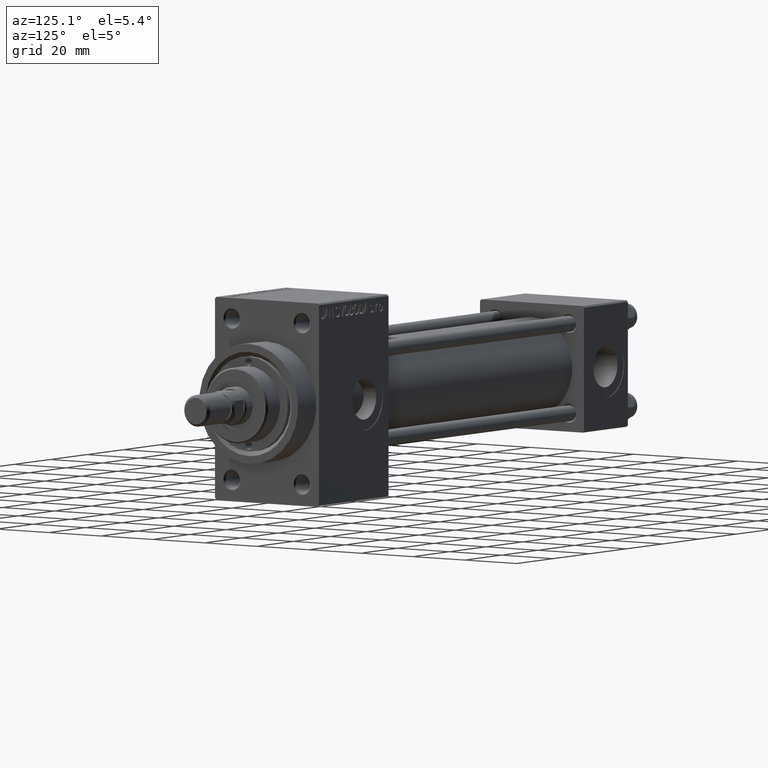
[diagram: clean part render]
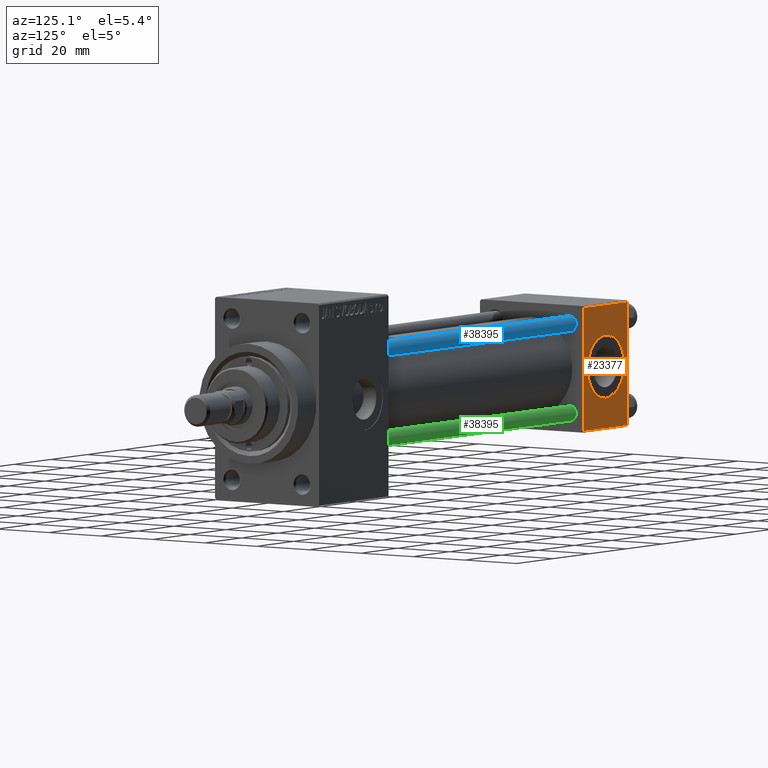
[diagram: same view with three faces highlighted in distinct colors, each labeled with its STEP entity id]
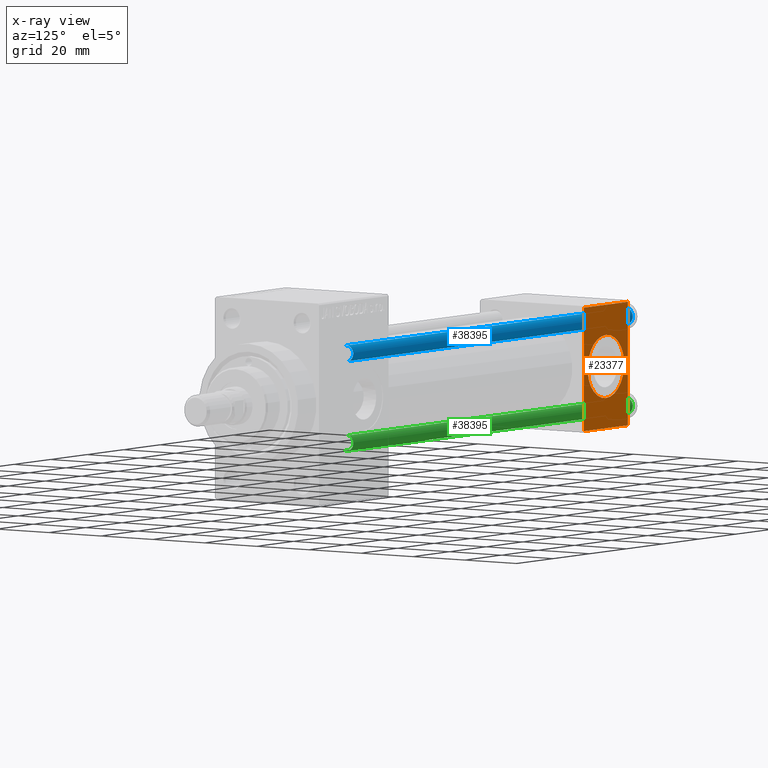
[diagram: x-ray of the same camera — body ghosted, the three highlighted faces saturated]
A machine part, auxiliary view with three faces highlighted in distinct colors.
The next image is the same camera in x-ray (body ghosted, the three faces saturated) — at least one of them is partly hidden behind the body in this view.
Their STEP definitions:

[orange] entity #23377 — the highlighted planar face has unit normal (0, 1, 0).
#1978 = DIRECTION ( 'NONE',  ( -1.000000000000000000, 0.000000000000000000, 0.000000000000000000 ) ) ;
#2145 = DIRECTION ( 'NONE',  ( 1.000000000000000000, 0.000000000000000000, 0.000000000000000000 ) ) ;
#3366 = EDGE_CURVE ( 'NONE', #13104, #10868, #34228, .T. ) ;
#3388 = DIRECTION ( 'NONE',  ( 0.000000000000000000, 0.000000000000000000, -1.000000000000000000 ) ) ;
#3873 = CARTESIAN_POINT ( 'NONE',  ( 24.00000000000000000, 20.00000000000000000, 20.00000000000000000 ) ) ;
#5415 = CARTESIAN_POINT ( 'NONE',  ( 24.00000000000000000, 20.00000000000000000, 19.49999999999999289 ) ) ;
#6964 = DIRECTION ( 'NONE',  ( 0.000000000000000000, -0.000000000000000000, 1.000000000000000000 ) ) ;
#7136 = LINE ( 'NONE', #22387, #17922 ) ;
#7212 = PLANE ( 'NONE',  #27807 ) ;
#9802 = CARTESIAN_POINT ( 'NONE',  ( 24.00000000000000000, 20.00000000000000000, -19.50000000000002132 ) ) ;
#10868 = VERTEX_POINT ( 'NONE', #39727 ) ;
#11284 = VERTEX_POINT ( 'NONE', #5415 ) ;
#12666 = AXIS2_PLACEMENT_3D ( 'NONE', #19054, #14572, #29806 ) ;
#13104 = VERTEX_POINT ( 'NONE', #29681 ) ;
#13979 = FACE_OUTER_BOUND ( 'NONE', #26932, .T. ) ;
#14162 = ORIENTED_EDGE ( 'NONE', *, *, #3366, .F. ) ;
#14572 = DIRECTION ( 'NONE',  ( 0.000000000000000000, 1.000000000000000000, 0.000000000000000000 ) ) ;
#15370 = LINE ( 'NONE', #3873, #40246 ) ;
#17648 = VECTOR ( 'NONE', #1978, 1000.000000000000000 ) ;
#17723 = CARTESIAN_POINT ( 'NONE',  ( 24.00000000000000000, 20.00000000000000000, 20.00000000000000000 ) ) ;
#17922 = VECTOR ( 'NONE', #2145, 1000.000000000000000 ) ;
#19054 = CARTESIAN_POINT ( 'NONE',  ( 12.00000000000000000, 20.00000000000000000, 0.000000000000000000 ) ) ;
#20219 = EDGE_CURVE ( 'NONE', #38728, #34434, #47773, .T. ) ;
#20327 = CIRCLE ( 'NONE', #25130, 10.00000000000000000 ) ;
#22387 = CARTESIAN_POINT ( 'NONE',  ( 24.00000000000000000, 20.00000000000000000, 19.49999999999999289 ) ) ;
#23377 = ADVANCED_FACE ( 'NONE', ( #44713, #13979 ), #7212, .T. ) ;
#25130 = AXIS2_PLACEMENT_3D ( 'NONE', #48426, #48916, #29191 ) ;
#26932 = EDGE_LOOP ( 'NONE', ( #39478, #47468, #29482, #38088 ) ) ;
#27807 = AXIS2_PLACEMENT_3D ( 'NONE', #17723, #29711, #6964 ) ;
#28686 = EDGE_LOOP ( 'NONE', ( #47727, #14162 ) ) ;
#29191 = DIRECTION ( 'NONE',  ( 0.000000000000000000, 0.000000000000000000, 1.000000000000000000 ) ) ;
#29482 = ORIENTED_EDGE ( 'NONE', *, *, #20219, .F. ) ;
#29681 = CARTESIAN_POINT ( 'NONE',  ( 12.00000000000000178, 20.00000000000000000, -10.00000000000000000 ) ) ;
#29711 = DIRECTION ( 'NONE',  ( -0.000000000000000000, 1.000000000000000000, 0.000000000000000000 ) ) ;
#29806 = DIRECTION ( 'NONE',  ( 0.000000000000000000, 0.000000000000000000, 1.000000000000000000 ) ) ;
#30347 = CARTESIAN_POINT ( 'NONE',  ( 0.000000000000000000, 20.00000000000000000, 19.49999999999999289 ) ) ;
#31793 = VECTOR ( 'NONE', #44277, 1000.000000000000000 ) ;
#34228 = CIRCLE ( 'NONE', #12666, 10.00000000000000000 ) ;
#34272 = EDGE_CURVE ( 'NONE', #40745, #34434, #44725, .T. ) ;
#34434 = VERTEX_POINT ( 'NONE', #43174 ) ;
#38088 = ORIENTED_EDGE ( 'NONE', *, *, #45510, .T. ) ;
#38728 = VERTEX_POINT ( 'NONE', #30347 ) ;
#39478 = ORIENTED_EDGE ( 'NONE', *, *, #45635, .T. ) ;
#39727 = CARTESIAN_POINT ( 'NONE',  ( 12.00000000000000000, 20.00000000000000000, 10.00000000000000000 ) ) ;
#40246 = VECTOR ( 'NONE', #3388, 1000.000000000000000 ) ;
#40528 = CARTESIAN_POINT ( 'NONE',  ( 0.000000000000000000, 20.00000000000000000, 20.00000000000000000 ) ) ;
#40727 = CARTESIAN_POINT ( 'NONE',  ( 24.00000000000000000, 20.00000000000000000, -19.50000000000002132 ) ) ;
#40745 = VERTEX_POINT ( 'NONE', #9802 ) ;
#43174 = CARTESIAN_POINT ( 'NONE',  ( 0.000000000000000000, 20.00000000000000000, -19.50000000000002132 ) ) ;
#44277 = DIRECTION ( 'NONE',  ( 0.000000000000000000, 0.000000000000000000, -1.000000000000000000 ) ) ;
#44713 = FACE_BOUND ( 'NONE', #28686, .T. ) ;
#44725 = LINE ( 'NONE', #40727, #17648 ) ;
#45510 = EDGE_CURVE ( 'NONE', #38728, #11284, #7136, .T. ) ;
#45635 = EDGE_CURVE ( 'NONE', #11284, #40745, #15370, .T. ) ;
#47468 = ORIENTED_EDGE ( 'NONE', *, *, #34272, .T. ) ;
#47727 = ORIENTED_EDGE ( 'NONE', *, *, #48774, .F. ) ;
#47773 = LINE ( 'NONE', #40528, #31793 ) ;
#48426 = CARTESIAN_POINT ( 'NONE',  ( 12.00000000000000000, 20.00000000000000000, 0.000000000000000000 ) ) ;
#48774 = EDGE_CURVE ( 'NONE', #10868, #13104, #20327, .T. ) ;
#48916 = DIRECTION ( 'NONE',  ( 0.000000000000000000, 1.000000000000000000, 0.000000000000000000 ) ) ;

[blue] entity #38395 — the highlighted cylindrical surface (edge-blend (fillet) strip) has radius 2.5 mm, axis along (-1, -0, 0).
#430 = DIRECTION ( 'NONE',  ( -0.000000000000000000, -0.000000000000000000, -1.000000000000000000 ) ) ;
#1504 = VECTOR ( 'NONE', #39413, 1000.000000000000000 ) ;
#4557 = ORIENTED_EDGE ( 'NONE', *, *, #29814, .T. ) ;
#7951 = CARTESIAN_POINT ( 'NONE',  ( 2.500000000000000000, 3.061616997868383141E-16, 154.0000000000000000 ) ) ;
#11100 = EDGE_LOOP ( 'NONE', ( #4557, #30022, #28176, #47627 ) ) ;
#12109 = CIRCLE ( 'NONE', #34450, 2.500000000000000000 ) ;
#12214 = DIRECTION ( 'NONE',  ( -1.000000000000000000, 0.000000000000000000, 0.000000000000000000 ) ) ;
#13236 = CARTESIAN_POINT ( 'NONE',  ( -2.500000000000000000, 0.000000000000000000, 0.5000000000000281997 ) ) ;
#15051 = CARTESIAN_POINT ( 'NONE',  ( -2.500000000000000000, 0.000000000000000000, 153.5000000000000284 ) ) ;
#16457 = CARTESIAN_POINT ( 'NONE',  ( 0.000000000000000000, 0.000000000000000000, 154.0000000000000000 ) ) ;
#16756 = DIRECTION ( 'NONE',  ( 1.000000000000000000, 0.000000000000000000, 0.000000000000000000 ) ) ;
#19683 = CARTESIAN_POINT ( 'NONE',  ( -2.500000000000000000, 0.000000000000000000, 154.0000000000000000 ) ) ;
#20046 = CIRCLE ( 'NONE', #26469, 2.500000000000000000 ) ;
#20169 = LINE ( 'NONE', #19683, #43941 ) ;
#20869 = DIRECTION ( 'NONE',  ( 0.000000000000000000, 0.000000000000000000, -1.000000000000000000 ) ) ;
#20913 = EDGE_CURVE ( 'NONE', #46590, #27019, #23443, .T. ) ;
#21462 = CARTESIAN_POINT ( 'NONE',  ( 2.500000000000000000, 3.061616997868383141E-16, 0.5000000000000281997 ) ) ;
#23443 = LINE ( 'NONE', #7951, #1504 ) ;
#26469 = AXIS2_PLACEMENT_3D ( 'NONE', #46995, #40004, #16756 ) ;
#27019 = VERTEX_POINT ( 'NONE', #21462 ) ;
#27871 = DIRECTION ( 'NONE',  ( 1.000000000000000000, 0.000000000000000000, 0.000000000000000000 ) ) ;
#28176 = ORIENTED_EDGE ( 'NONE', *, *, #37948, .T. ) ;
#28194 = DIRECTION ( 'NONE',  ( -0.000000000000000000, -0.000000000000000000, -1.000000000000000000 ) ) ;
#29814 = EDGE_CURVE ( 'NONE', #36051, #46590, #12109, .T. ) ;
#30022 = ORIENTED_EDGE ( 'NONE', *, *, #20913, .T. ) ;
#33453 = EDGE_CURVE ( 'NONE', #36051, #36189, #20169, .T. ) ;
#34128 = CARTESIAN_POINT ( 'NONE',  ( 2.500000000000000000, 3.061616997868383141E-16, 153.5000000000000284 ) ) ;
#34450 = AXIS2_PLACEMENT_3D ( 'NONE', #39368, #20869, #27871 ) ;
#36051 = VERTEX_POINT ( 'NONE', #15051 ) ;
#36189 = VERTEX_POINT ( 'NONE', #13236 ) ;
#37948 = EDGE_CURVE ( 'NONE', #27019, #36189, #20046, .T. ) ;
#38395 = ADVANCED_FACE ( 'NONE', ( #46696 ), #46454, .T. ) ;
#39368 = CARTESIAN_POINT ( 'NONE',  ( 0.000000000000000000, 0.000000000000000000, 153.5000000000000284 ) ) ;
#39413 = DIRECTION ( 'NONE',  ( -0.000000000000000000, -0.000000000000000000, -1.000000000000000000 ) ) ;
#40004 = DIRECTION ( 'NONE',  ( -0.000000000000000000, -0.000000000000000000, 1.000000000000000000 ) ) ;
#43176 = AXIS2_PLACEMENT_3D ( 'NONE', #16457, #28194, #12214 ) ;
#43941 = VECTOR ( 'NONE', #430, 1000.000000000000000 ) ;
#46454 = CYLINDRICAL_SURFACE ( 'NONE', #43176, 2.500000000000000000 ) ;
#46590 = VERTEX_POINT ( 'NONE', #34128 ) ;
#46696 = FACE_OUTER_BOUND ( 'NONE', #11100, .T. ) ;
#46995 = CARTESIAN_POINT ( 'NONE',  ( 0.000000000000000000, 0.000000000000000000, 0.5000000000000281997 ) ) ;
#47627 = ORIENTED_EDGE ( 'NONE', *, *, #33453, .F. ) ;

[green] entity #38395 — the highlighted cylindrical surface (edge-blend (fillet) strip) has radius 2.5 mm, axis along (1, -0, 0).
#430 = DIRECTION ( 'NONE',  ( -0.000000000000000000, -0.000000000000000000, -1.000000000000000000 ) ) ;
#1504 = VECTOR ( 'NONE', #39413, 1000.000000000000000 ) ;
#4557 = ORIENTED_EDGE ( 'NONE', *, *, #29814, .T. ) ;
#7951 = CARTESIAN_POINT ( 'NONE',  ( 2.500000000000000000, 3.061616997868383141E-16, 154.0000000000000000 ) ) ;
#11100 = EDGE_LOOP ( 'NONE', ( #4557, #30022, #28176, #47627 ) ) ;
#12109 = CIRCLE ( 'NONE', #34450, 2.500000000000000000 ) ;
#12214 = DIRECTION ( 'NONE',  ( -1.000000000000000000, 0.000000000000000000, 0.000000000000000000 ) ) ;
#13236 = CARTESIAN_POINT ( 'NONE',  ( -2.500000000000000000, 0.000000000000000000, 0.5000000000000281997 ) ) ;
#15051 = CARTESIAN_POINT ( 'NONE',  ( -2.500000000000000000, 0.000000000000000000, 153.5000000000000284 ) ) ;
#16457 = CARTESIAN_POINT ( 'NONE',  ( 0.000000000000000000, 0.000000000000000000, 154.0000000000000000 ) ) ;
#16756 = DIRECTION ( 'NONE',  ( 1.000000000000000000, 0.000000000000000000, 0.000000000000000000 ) ) ;
#19683 = CARTESIAN_POINT ( 'NONE',  ( -2.500000000000000000, 0.000000000000000000, 154.0000000000000000 ) ) ;
#20046 = CIRCLE ( 'NONE', #26469, 2.500000000000000000 ) ;
#20169 = LINE ( 'NONE', #19683, #43941 ) ;
#20869 = DIRECTION ( 'NONE',  ( 0.000000000000000000, 0.000000000000000000, -1.000000000000000000 ) ) ;
#20913 = EDGE_CURVE ( 'NONE', #46590, #27019, #23443, .T. ) ;
#21462 = CARTESIAN_POINT ( 'NONE',  ( 2.500000000000000000, 3.061616997868383141E-16, 0.5000000000000281997 ) ) ;
#23443 = LINE ( 'NONE', #7951, #1504 ) ;
#26469 = AXIS2_PLACEMENT_3D ( 'NONE', #46995, #40004, #16756 ) ;
#27019 = VERTEX_POINT ( 'NONE', #21462 ) ;
#27871 = DIRECTION ( 'NONE',  ( 1.000000000000000000, 0.000000000000000000, 0.000000000000000000 ) ) ;
#28176 = ORIENTED_EDGE ( 'NONE', *, *, #37948, .T. ) ;
#28194 = DIRECTION ( 'NONE',  ( -0.000000000000000000, -0.000000000000000000, -1.000000000000000000 ) ) ;
#29814 = EDGE_CURVE ( 'NONE', #36051, #46590, #12109, .T. ) ;
#30022 = ORIENTED_EDGE ( 'NONE', *, *, #20913, .T. ) ;
#33453 = EDGE_CURVE ( 'NONE', #36051, #36189, #20169, .T. ) ;
#34128 = CARTESIAN_POINT ( 'NONE',  ( 2.500000000000000000, 3.061616997868383141E-16, 153.5000000000000284 ) ) ;
#34450 = AXIS2_PLACEMENT_3D ( 'NONE', #39368, #20869, #27871 ) ;
#36051 = VERTEX_POINT ( 'NONE', #15051 ) ;
#36189 = VERTEX_POINT ( 'NONE', #13236 ) ;
#37948 = EDGE_CURVE ( 'NONE', #27019, #36189, #20046, .T. ) ;
#38395 = ADVANCED_FACE ( 'NONE', ( #46696 ), #46454, .T. ) ;
#39368 = CARTESIAN_POINT ( 'NONE',  ( 0.000000000000000000, 0.000000000000000000, 153.5000000000000284 ) ) ;
#39413 = DIRECTION ( 'NONE',  ( -0.000000000000000000, -0.000000000000000000, -1.000000000000000000 ) ) ;
#40004 = DIRECTION ( 'NONE',  ( -0.000000000000000000, -0.000000000000000000, 1.000000000000000000 ) ) ;
#43176 = AXIS2_PLACEMENT_3D ( 'NONE', #16457, #28194, #12214 ) ;
#43941 = VECTOR ( 'NONE', #430, 1000.000000000000000 ) ;
#46454 = CYLINDRICAL_SURFACE ( 'NONE', #43176, 2.500000000000000000 ) ;
#46590 = VERTEX_POINT ( 'NONE', #34128 ) ;
#46696 = FACE_OUTER_BOUND ( 'NONE', #11100, .T. ) ;
#46995 = CARTESIAN_POINT ( 'NONE',  ( 0.000000000000000000, 0.000000000000000000, 0.5000000000000281997 ) ) ;
#47627 = ORIENTED_EDGE ( 'NONE', *, *, #33453, .F. ) ;